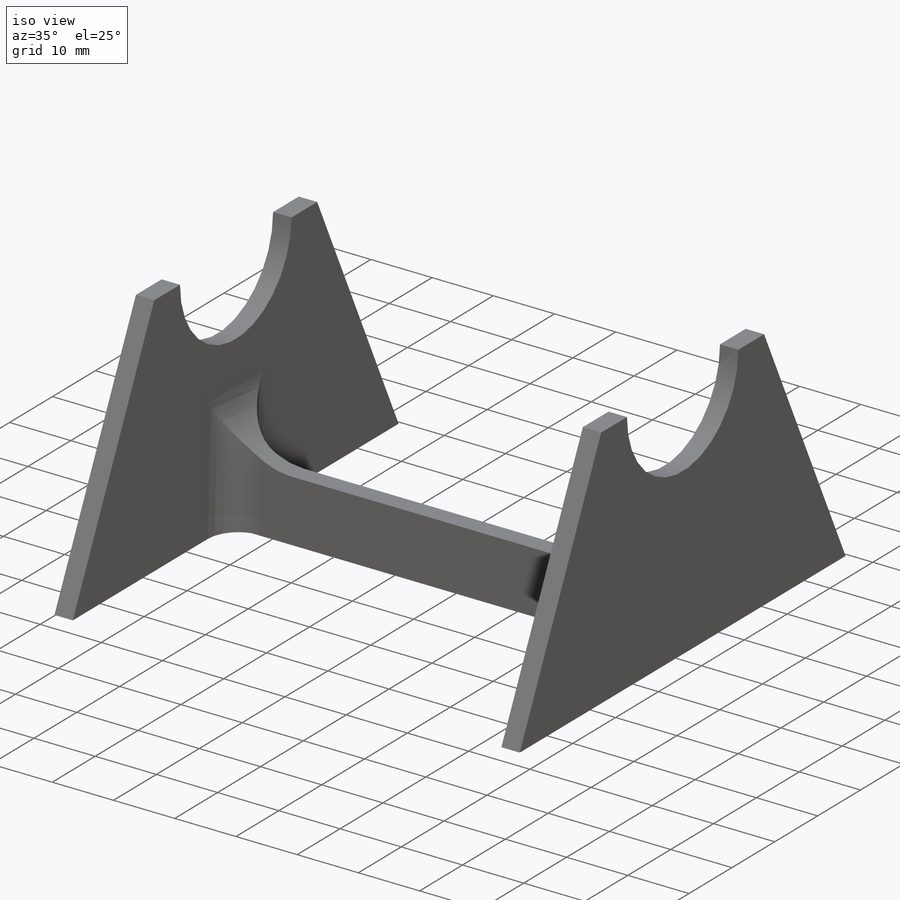
[diagram: iso view]
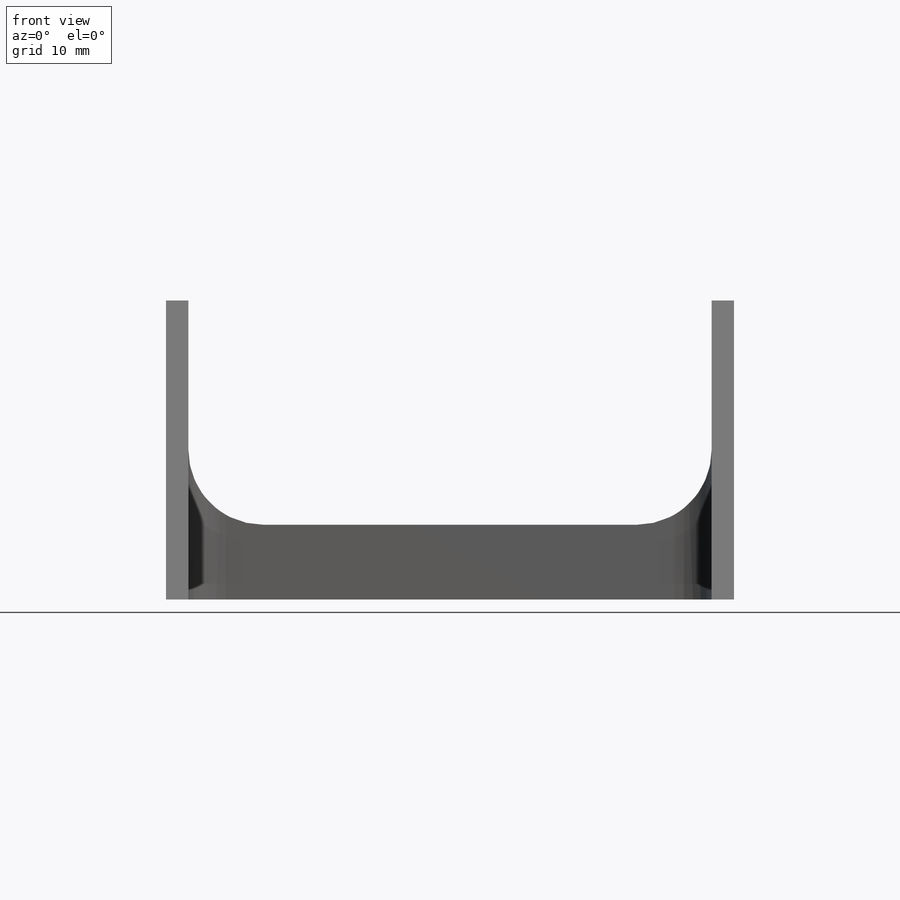
[diagram: front view]
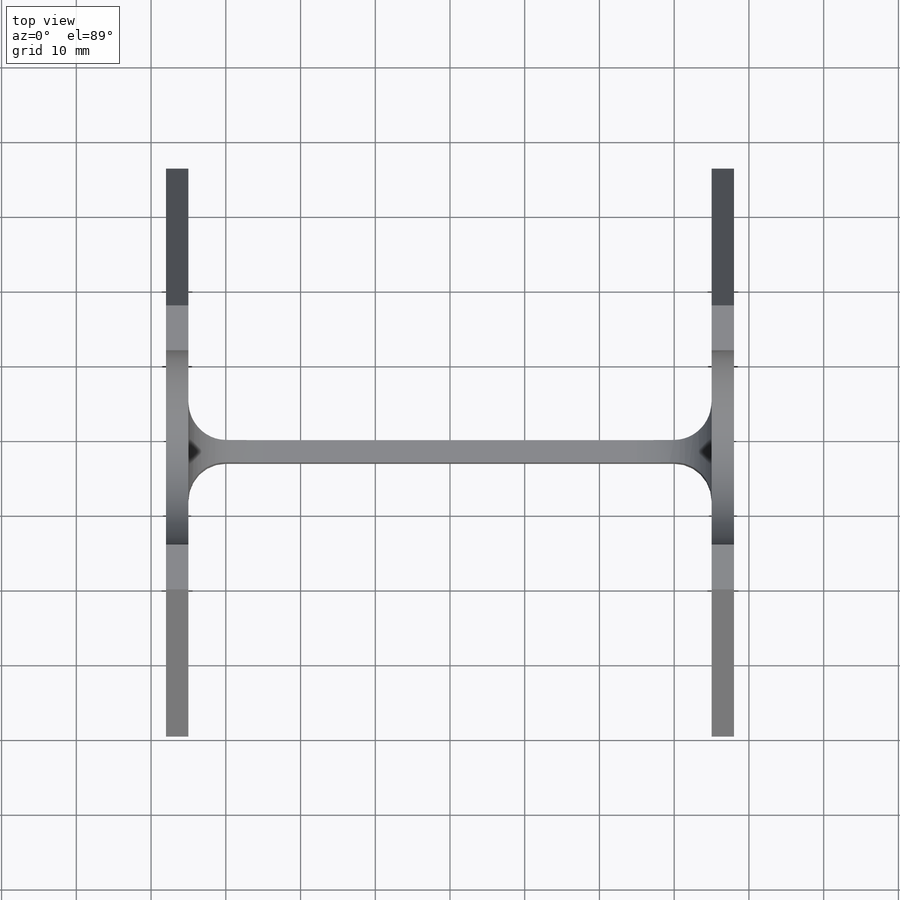
[diagram: top view]
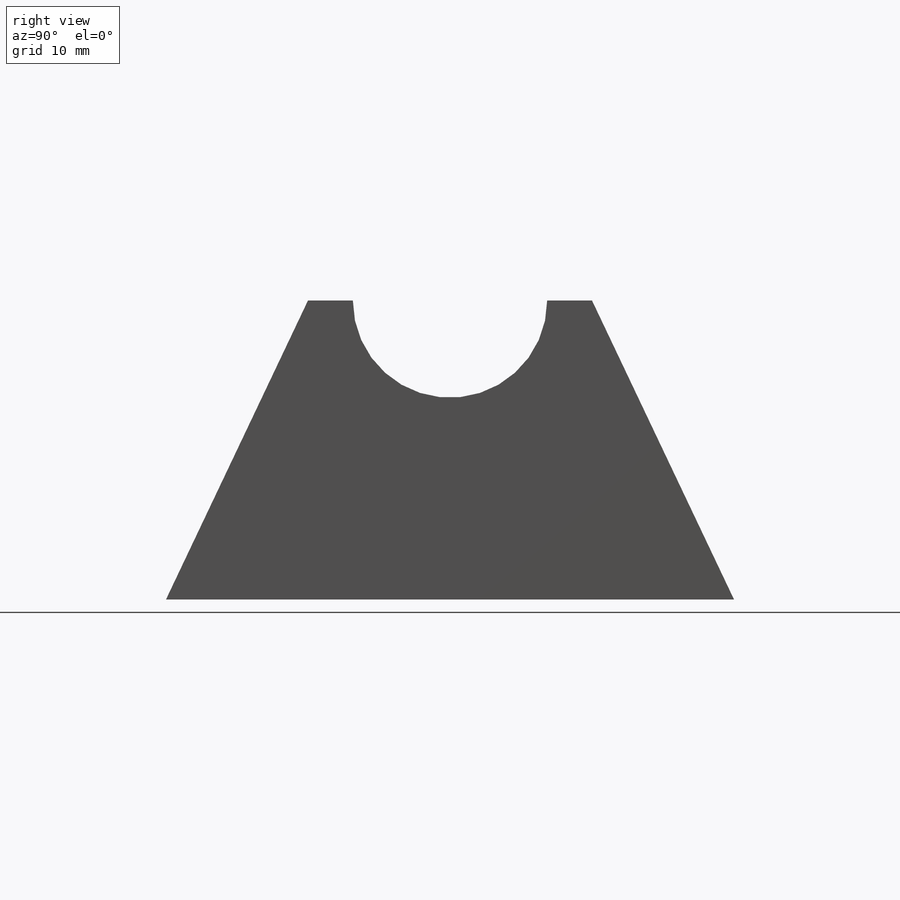
[diagram: right view]
SOLIDWORKS PART (.sldprt)
format: sldprt  version: not decoded by parser v0  size: 216,576 bytes
history: native  units: mm
features: plane x3, sketch x3, extrude x2, fillet x2, material x1, mirror x1, cut_extrude x1 (+10 scaffold rows collapsed)
feature tree (23):
  scaffold x10  (default folders/planes/origin — collapsed)
  material  "Matériau <non spécifié>"
  plane  "Plan de face"
  plane  "Plan de dessus"
  plane  "Plan de droite"
  sketch  "Esquisse1"  dims[D1=70.0mm D2=40.0mm]
  extrude  "Boss.-Extru.1"  Depth=3mm
  sketch  "Esquisse2"  dims[c1.D1=~15.257666mm c1.D3=12.56mm c2.D1=6.0mm c2.D2=38.0mm c2.D3=3.0mm]
  extrude  "Boss.-Extru.2"  Depth=3mm
  mirror  "Symétrie1"
  sketch  "Esquisse3"  dims[D1=30.0mm]
  cut_extrude  "Enlèv. mat.-Extru.1"  Depth=3mm
  fillet  "Congé1"  Radius=10mm
  fillet  "Congé2"  Radius=5mm
decode coverage: 8 of 9 modeling features carry decoded parameters
note: ~ marks probable driven/reference dimensions
note: suppression state not decoded; provenance and decode notes live in map.json
